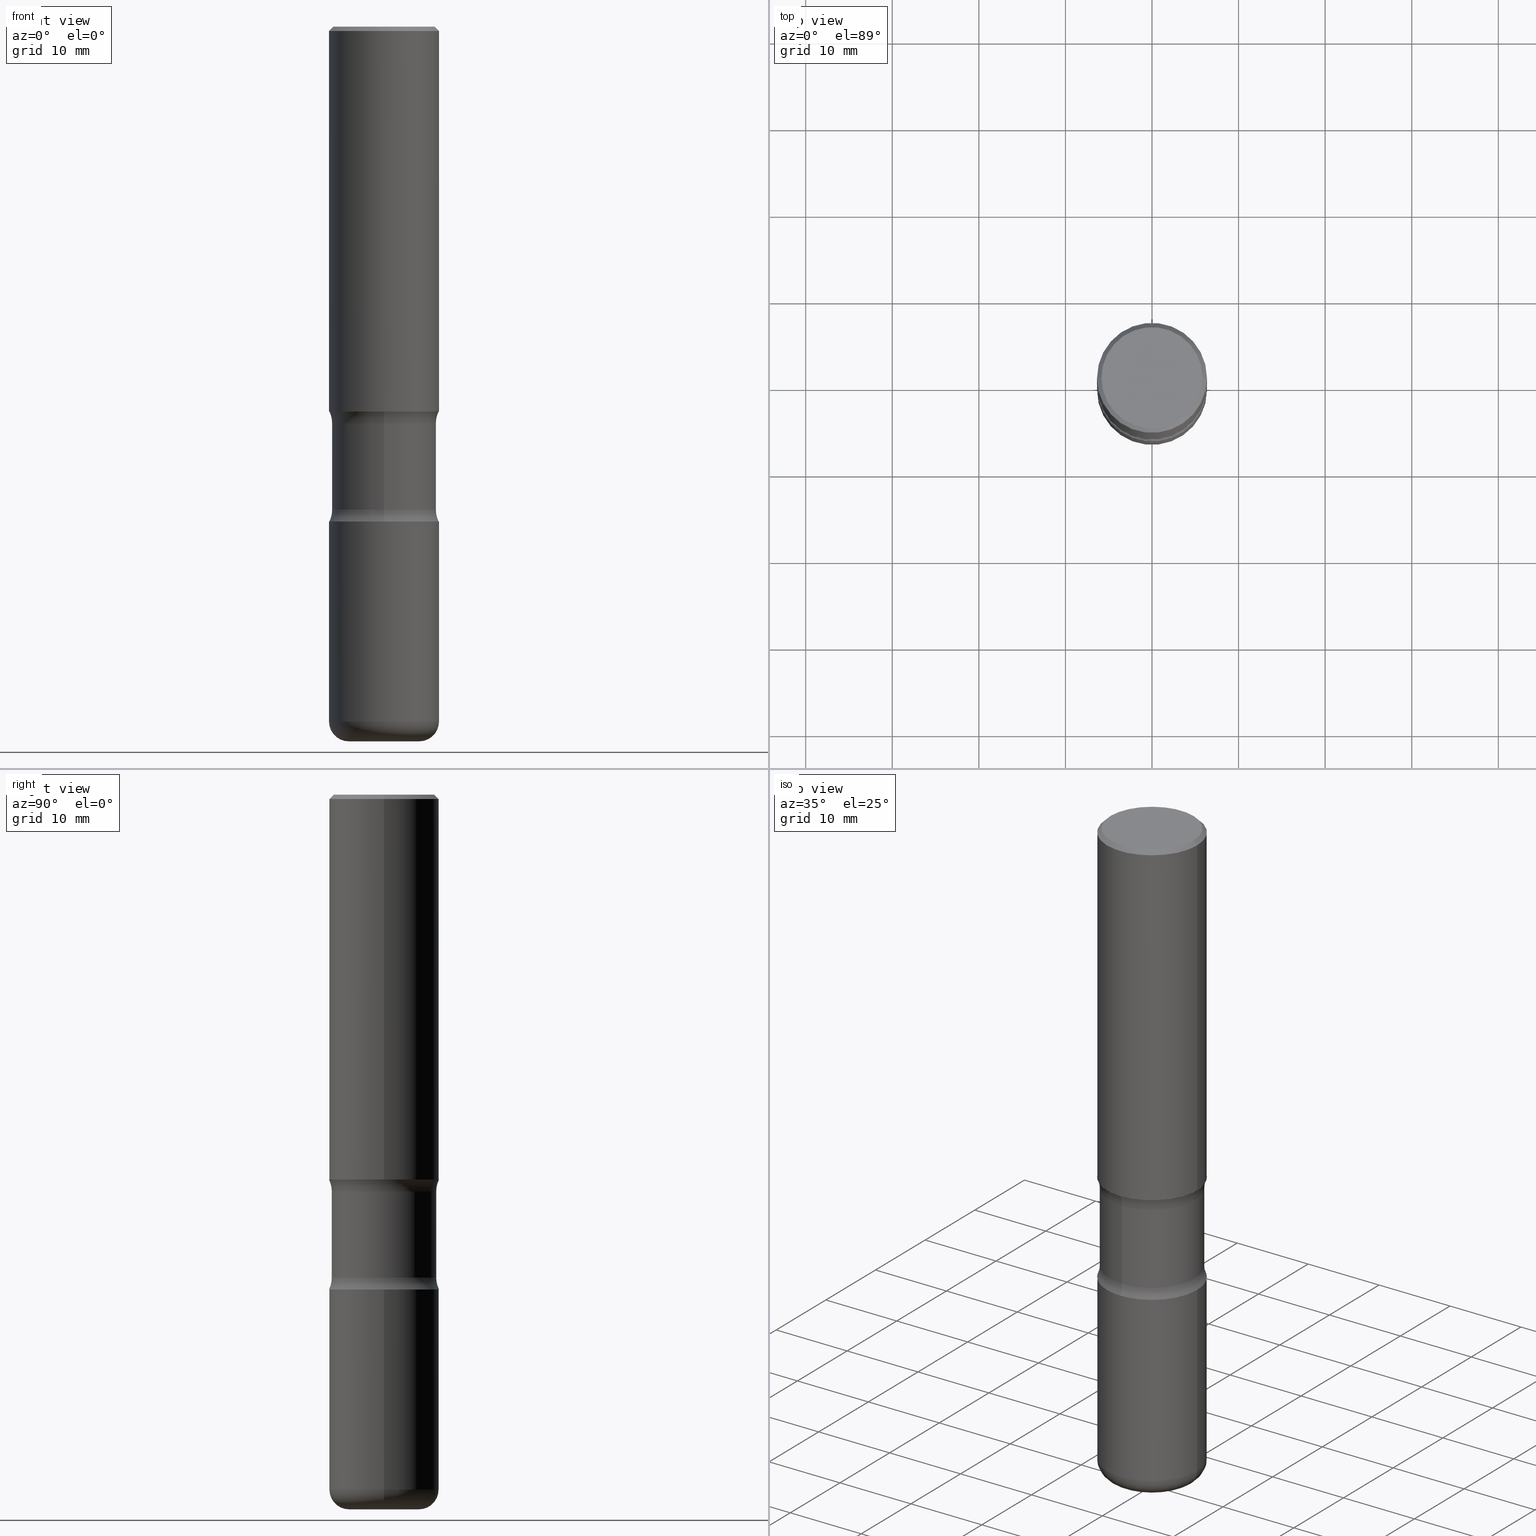
[diagram: canonical four-view strip — front | top / right | iso, engineering-drawing reading convention]
A machine part, canonical four-view strip (front | top / right | iso — engineering-drawing reading convention). The complete STEP part file that produces these views, byte-faithful:
ISO-10303-21;
HEADER;
FILE_DESCRIPTION (( 'STEP AP203' ),
    '1' );
FILE_NAME ('34102.STEP',
    '2024-03-01T23:01:34',
    ( '' ),
    ( '' ),
    'SwSTEP 2.0',
    'SolidWorks 2023',
    '' );
FILE_SCHEMA (( 'CONFIG_CONTROL_DESIGN' ));
ENDSEC;

DATA;
#1 = VECTOR ( 'NONE', #81, 39.37007874015748143 ) ;
#2 = FACE_OUTER_BOUND ( 'NONE', #33, .T. ) ;
#3 = TOROIDAL_SURFACE ( 'NONE', #9, 0.3624999999999997113, 0.1250000000000000278 ) ;
#4 = CARTESIAN_POINT ( 'NONE',  ( 5.369060421469781115E-29, -7.665595333406135543E-15, -2.195513763205741320 ) ) ;
#5 = DIRECTION ( 'NONE',  ( -1.000000000000000000, 6.982962677686265922E-15, -4.876176775795935793E-29 ) ) ;
#6 = DIRECTION ( 'NONE',  ( 1.000000000000000000, -6.982962677686276177E-15, 0.000000000000000000 ) ) ;
#7 = CIRCLE ( 'NONE', #61, 0.1600000000000004474 ) ;
#8 = ORIENTED_EDGE ( 'NONE', *, *, #34, .T. ) ;
#9 = AXIS2_PLACEMENT_3D ( 'NONE', #397, #186, #235 ) ;
#10 = ADVANCED_FACE ( 'NONE', ( #115 ), #510, .F. ) ;
#11 = FACE_OUTER_BOUND ( 'NONE', #447, .T. ) ;
#12 = CYLINDRICAL_SURFACE ( 'NONE', #499, 0.2500000000000005551 ) ;
#13 = DATE_AND_TIME ( #227, #139 ) ;
#14 = ADVANCED_FACE ( 'NONE', ( #551 ), #187, .T. ) ;
#15 = EDGE_CURVE ( 'NONE', #68, #140, #156, .T. ) ;
#16 = DIRECTION ( 'NONE',  ( 1.000000000000000000, -6.982962677686265922E-15, 4.875813741439089685E-29 ) ) ;
#17 = AXIS2_PLACEMENT_3D ( 'NONE', #373, #380, #460 ) ;
#18 = CIRCLE ( 'NONE', #361, 0.2500000000000003886 ) ;
#19 = LOCAL_TIME ( 18, 1, 34.00000000000000000, #66 ) ;
#20 = CARTESIAN_POINT ( 'NONE',  ( -1.715124499442830037E-15, -0.2500000000000082712, -2.250000000000000444 ) ) ;
#21 = APPLICATION_PROTOCOL_DEFINITION ( 'international standard', 'config_control_design', 1994, #240 ) ;
#22 = DIRECTION ( 'NONE',  ( 2.269921404058617848E-29, -3.742875210225950140E-15, -1.000000000000000000 ) ) ;
#23 = DIRECTION ( 'NONE',  ( 1.000000000000000000, -6.982962677686267499E-15, 0.000000000000000000 ) ) ;
#24 = PERSON_AND_ORGANIZATION ( #334, #402 ) ;
#25 = DATE_TIME_ROLE ( 'creation_date' ) ;
#26 = ORIENTED_EDGE ( 'NONE', *, *, #94, .F. ) ;
#27 = AXIS2_PLACEMENT_3D ( 'NONE', #502, #467, #78 ) ;
#28 = MANIFOLD_SOLID_BREP ( 'Body-Move/Copy2[1]', #117 ) ;
#29 = DIRECTION ( 'NONE',  ( 1.000000000000000000, -6.982962677686264344E-15, 0.000000000000000000 ) ) ;
#30 = COORDINATED_UNIVERSAL_TIME_OFFSET ( 5, 0, .BEHIND. ) ;
#31 = ORIENTED_EDGE ( 'NONE', *, *, #515, .F. ) ;
#32 = CARTESIAN_POINT ( 'NONE',  ( -0.1600000000000004474, -9.733585082684073752E-15, -3.249999999999999556 ) ) ;
#33 = EDGE_LOOP ( 'NONE', ( #318, #264, #444, #414 ) ) ;
#34 = EDGE_CURVE ( 'NONE', #497, #168, #223, .T. ) ;
#35 = ORIENTED_EDGE ( 'NONE', *, *, #316, .F. ) ;
#36 = CARTESIAN_POINT ( 'NONE',  ( 0.2500000000000003886, -1.784954126219748555E-15, -0.02000000000000000042 ) ) ;
#37 = DIRECTION ( 'NONE',  ( 1.000000000000000000, -6.982962677686267499E-15, 0.000000000000000000 ) ) ;
#38 = EDGE_LOOP ( 'NONE', ( #412, #419, #321, #302 ) ) ;
#39 = AXIS2_PLACEMENT_3D ( 'NONE', #553, #281, #249 ) ;
#40 = APPROVAL_PERSON_ORGANIZATION ( #195, #165, #487 ) ;
#41 = DIRECTION ( 'NONE',  ( 2.438088387897960049E-29, -3.491481338843145188E-15, -1.000000000000000000 ) ) ;
#42 = EDGE_LOOP ( 'NONE', ( #183, #495, #270, #410 ) ) ;
#43 = DIRECTION ( 'NONE',  ( 0.7071067811865464625, -7.319954787623252890E-15, -0.7071067811865485719 ) ) ;
#44 = DIRECTION ( 'NONE',  ( 1.000000000000000000, -6.982962677686265922E-15, 4.875813741439089685E-29 ) ) ;
#45 = EDGE_CURVE ( 'NONE', #233, #529, #379, .T. ) ;
#46 = AXIS2_PLACEMENT_3D ( 'NONE', #385, #346, #37 ) ;
#47 = CARTESIAN_POINT ( 'NONE',  ( 1.658453635950530153E-15, 0.2374999999999934108, -1.804486236794262233 ) ) ;
#48 = CIRCLE ( 'NONE', #463, 0.1250000000000000278 ) ;
#49 = EDGE_CURVE ( 'NONE', #364, #140, #335, .T. ) ;
#50 = DIRECTION ( 'NONE',  ( -2.445468806185136597E-29, 3.491481338843145583E-15, 1.000000000000000000 ) ) ;
#51 = DIRECTION ( 'NONE',  ( -2.445468806185136597E-29, 3.491481338843145583E-15, 1.000000000000000000 ) ) ;
#52 = DIRECTION ( 'NONE',  ( 2.445468806185136597E-29, -3.491481338843145583E-15, -1.000000000000000000 ) ) ;
#53 = AXIS2_PLACEMENT_3D ( 'NONE', #438, #51, #86 ) ;
#54 = LINE ( 'NONE', #132, #217 ) ;
#55 = MECHANICAL_CONTEXT ( 'NONE', #240, 'mechanical' ) ;
#56 = CARTESIAN_POINT ( 'NONE',  ( 0.2500000000000005551, -1.745740669421570622E-15, 1.219044193948986471E-29 ) ) ;
#57 = LENGTH_MEASURE_WITH_UNIT ( LENGTH_MEASURE( 0.02539999999999999897 ), #238 );
#58 = EDGE_LOOP ( 'NONE', ( #121, #423, #514, #35 ) ) ;
#59 = VERTEX_POINT ( 'NONE', #558 ) ;
#60 = LINE ( 'NONE', #56, #63 ) ;
#61 = AXIS2_PLACEMENT_3D ( 'NONE', #375, #332, #29 ) ;
#62 = VERTEX_POINT ( 'NONE', #456 ) ;
#63 = VECTOR ( 'NONE', #396, 39.37007874015748143 ) ;
#64 = DIRECTION ( 'NONE',  ( -2.445468806185136877E-29, 3.491481338843145188E-15, 1.000000000000000000 ) ) ;
#65 = EDGE_CURVE ( 'NONE', #364, #59, #441, .T. ) ;
#66 = COORDINATED_UNIVERSAL_TIME_OFFSET ( 5, 0, .BEHIND. ) ;
#67 = FACE_OUTER_BOUND ( 'NONE', #38, .T. ) ;
#68 = VERTEX_POINT ( 'NONE', #155 ) ;
#69 = EDGE_LOOP ( 'NONE', ( #164, #184 ) ) ;
#70 = SHAPE_DEFINITION_REPRESENTATION ( #79, #413 ) ;
#71 = DIRECTION ( 'NONE',  ( -2.445468806185136597E-29, 3.491481338843145583E-15, 1.000000000000000000 ) ) ;
#72 = EDGE_LOOP ( 'NONE', ( #192, #244 ) ) ;
#73 = AXIS2_PLACEMENT_3D ( 'NONE', #384, #71, #422 ) ;
#74 = EDGE_CURVE ( 'NONE', #293, #68, #263, .T. ) ;
#75 = VERTEX_POINT ( 'NONE', #152 ) ;
#76 = CARTESIAN_POINT ( 'NONE',  ( 5.502304813916559585E-29, -7.855833012397081604E-15, -2.250000000000001332 ) ) ;
#77 = FACE_OUTER_BOUND ( 'NONE', #365, .T. ) ;
#78 = DIRECTION ( 'NONE',  ( 6.982962677686265922E-15, 1.000000000000000000, -3.742875210225950140E-15 ) ) ;
#79 = PRODUCT_DEFINITION_SHAPE ( 'NONE', 'NONE',  #304 ) ;
#80 = DIRECTION ( 'NONE',  ( 6.982962677686265133E-15, 1.000000000000000000, -3.278217592397110735E-15 ) ) ;
#81 = DIRECTION ( 'NONE',  ( -2.445468806185136877E-29, 3.491481338843145188E-15, 1.000000000000000000 ) ) ;
#82 = ORIENTED_EDGE ( 'NONE', *, *, #339, .T. ) ;
#83 = EDGE_LOOP ( 'NONE', ( #109, #492 ) ) ;
#84 = AXIS2_PLACEMENT_3D ( 'NONE', #4, #348, #178 ) ;
#85 = LINE ( 'NONE', #429, #283 ) ;
#86 = DIRECTION ( 'NONE',  ( 1.000000000000000000, -6.982962677686269077E-15, 4.883557194083113462E-29 ) ) ;
#87 = DIRECTION ( 'NONE',  ( -2.445468806185136597E-29, 3.491481338843145583E-15, 1.000000000000000000 ) ) ;
#88 = APPROVAL ( #453, 'UNSPECIFIED' ) ;
#89 = DIRECTION ( 'NONE',  ( 6.982962677686265133E-15, 1.000000000000000000, -3.278217592397110735E-15 ) ) ;
#90 = AXIS2_PLACEMENT_3D ( 'NONE', #273, #404, #16 ) ;
#91 = FACE_OUTER_BOUND ( 'NONE', #42, .T. ) ;
#92 = CIRCLE ( 'NONE', #232, 0.2500000000000002220 ) ;
#93 = ORIENTED_EDGE ( 'NONE', *, *, #15, .T. ) ;
#94 = EDGE_CURVE ( 'NONE', #120, #140, #337, .T. ) ;
#95 = DIRECTION ( 'NONE',  ( -1.000000000000000000, 6.982962677686265922E-15, -4.876176775795935793E-29 ) ) ;
#96 = DIRECTION ( 'NONE',  ( -2.269921404058617848E-29, 3.742875210225950140E-15, 1.000000000000000000 ) ) ;
#97 = CARTESIAN_POINT ( 'NONE',  ( 4.890937612370273159E-31, -6.982962677686291609E-17, -0.02000000000000000042 ) ) ;
#98 = CIRCLE ( 'NONE', #17, 0.1250000000000000278 ) ;
#99 = DIRECTION ( 'NONE',  ( -2.445468806185136597E-29, 3.491481338843145583E-15, 1.000000000000000000 ) ) ;
#100 = APPROVAL_PERSON_ORGANIZATION ( #276, #88, #266 ) ;
#101 = DIRECTION ( 'NONE',  ( -2.438088387897960049E-29, 3.491481338843145188E-15, 1.000000000000000000 ) ) ;
#102 = FACE_OUTER_BOUND ( 'NONE', #219, .T. ) ;
#103 =( NAMED_UNIT ( * ) PLANE_ANGLE_UNIT ( ) SI_UNIT ( $, .RADIAN. ) );
#104 = ADVANCED_FACE ( 'NONE', ( #466 ), #450, .F. ) ;
#105 = CARTESIAN_POINT ( 'NONE',  ( 4.279570410823991847E-29, -6.110092342975509404E-15, -1.750000000000001332 ) ) ;
#106 = DIRECTION ( 'NONE',  ( -1.000000000000000000, 6.982962677686265922E-15, -4.883557194083112340E-29 ) ) ;
#107 = AXIS2_PLACEMENT_3D ( 'NONE', #241, #417, #254 ) ;
#108 = EDGE_CURVE ( 'NONE', #233, #327, #377, .T. ) ;
#109 = ORIENTED_EDGE ( 'NONE', *, *, #224, .T. ) ;
#110 = CARTESIAN_POINT ( 'NONE',  ( 0.000000000000000000, 0.000000000000000000, 0.000000000000000000 ) ) ;
#111 = VERTEX_POINT ( 'NONE', #32 ) ;
#112 = DIRECTION ( 'NONE',  ( -2.445468806185136597E-29, 3.491481338843145583E-15, 1.000000000000000000 ) ) ;
#113 = CARTESIAN_POINT ( 'NONE',  ( -1.629368274470659150E-15, -0.2375000000000113409, -3.250000000000000000 ) ) ;
#114 = EDGE_CURVE ( 'NONE', #111, #542, #7, .T. ) ;
#115 = FACE_OUTER_BOUND ( 'NONE', #198, .T. ) ;
#116 = EDGE_CURVE ( 'NONE', #68, #461, #98, .T. ) ;
#117 = CLOSED_SHELL ( 'NONE', ( #247, #126, #230, #288, #299, #173 ) ) ;
#118 = DIRECTION ( 'NONE',  ( 2.269921404058617848E-29, -3.742875210225950140E-15, -1.000000000000000000 ) ) ;
#119 = PERSON_AND_ORGANIZATION ( #334, #402 ) ;
#120 = VERTEX_POINT ( 'NONE', #200 ) ;
#121 = ORIENTED_EDGE ( 'NONE', *, *, #15, .F. ) ;
#122 = ORIENTED_EDGE ( 'NONE', *, *, #65, .T. ) ;
#123 = DIRECTION ( 'NONE',  ( -2.445468806185136597E-29, 3.491481338843145583E-15, 1.000000000000000000 ) ) ;
#124 = AXIS2_PLACEMENT_3D ( 'NONE', #509, #501, #287 ) ;
#125 = CC_DESIGN_SECURITY_CLASSIFICATION ( #355, ( #519 ) ) ;
#126 = ADVANCED_FACE ( 'NONE', ( #77 ), #207, .T. ) ;
#127 = CARTESIAN_POINT ( 'NONE',  ( 5.378625338790664161E-29, -7.651897827401345401E-15, -2.195513763205741320 ) ) ;
#128 = CYLINDRICAL_SURFACE ( 'NONE', #325, 0.2500000000000003886 ) ;
#129 = CLOSED_SHELL ( 'NONE', ( #386, #14, #434, #280, #449, #216 ) ) ;
#130 = AXIS2_PLACEMENT_3D ( 'NONE', #271, #181, #539 ) ;
#131 = DIRECTION ( 'NONE',  ( 1.000000000000000000, -6.982962677686267499E-15, 4.876176775795935793E-29 ) ) ;
#132 = CARTESIAN_POINT ( 'NONE',  ( 1.658453635950563680E-15, 0.2374999999999881095, -3.250000000000002220 ) ) ;
#133 = CARTESIAN_POINT ( 'NONE',  ( -0.2300000000000004818, 1.640996229256275675E-15, -1.707404996041300040E-17 ) ) ;
#134 = CYLINDRICAL_SURFACE ( 'NONE', #130, 0.2374999999999997113 ) ;
#135 = DIRECTION ( 'NONE',  ( 0.000000000000000000, 0.000000000000000000, 1.000000000000000000 ) ) ;
#136 = FACE_OUTER_BOUND ( 'NONE', #488, .T. ) ;
#137 = EDGE_CURVE ( 'NONE', #168, #497, #533, .T. ) ;
#138 = AXIS2_PLACEMENT_3D ( 'NONE', #282, #112, #248 ) ;
#139 = LOCAL_TIME ( 18, 1, 34.00000000000000000, #443 ) ;
#140 = VERTEX_POINT ( 'NONE', #556 ) ;
#141 = CARTESIAN_POINT ( 'NONE',  ( 0.000000000000000000, 0.000000000000000000, 0.000000000000000000 ) ) ;
#142 = CARTESIAN_POINT ( 'NONE',  ( -0.1600000000000004474, -9.896212653528176699E-15, -3.160000000000000142 ) ) ;
#143 = EDGE_CURVE ( 'NONE', #75, #62, #517, .T. ) ;
#144 = ORIENTED_EDGE ( 'NONE', *, *, #526, .F. ) ;
#145 = DIMENSIONAL_EXPONENTS ( 1.000000000000000000, 0.000000000000000000, 0.000000000000000000, 0.000000000000000000, 0.000000000000000000, 0.000000000000000000, 0.000000000000000000 ) ;
#146 = DIRECTION ( 'NONE',  ( 1.000000000000000000, -6.982962677686266711E-15, 4.876176775795935232E-29 ) ) ;
#147 = PERSON_AND_ORGANIZATION_ROLE ( 'design_owner' ) ;
#148 =( NAMED_UNIT ( * ) SI_UNIT ( $, .STERADIAN. ) SOLID_ANGLE_UNIT ( ) );
#149 = AXIS2_PLACEMENT_3D ( 'NONE', #516, #123, #352 ) ;
#150 = CIRCLE ( 'NONE', #395, 0.08999999999999962197 ) ;
#151 = ORIENTED_EDGE ( 'NONE', *, *, #49, .T. ) ;
#152 = CARTESIAN_POINT ( 'NONE',  ( 0.2500000000000006661, -7.855833012397080026E-15, -1.750000000000001332 ) ) ;
#153 = DIRECTION ( 'NONE',  ( 2.445468806185136597E-29, -3.491481338843145583E-15, -1.000000000000000000 ) ) ;
#154 = EDGE_LOOP ( 'NONE', ( #272, #383, #465, #338 ) ) ;
#155 = CARTESIAN_POINT ( 'NONE',  ( -1.672246386956765893E-15, -0.2375000000000057621, -1.804486236794260678 ) ) ;
#156 = LINE ( 'NONE', #113, #296 ) ;
#157 = ORIENTED_EDGE ( 'NONE', *, *, #260, .F. ) ;
#158 = DIRECTION ( 'NONE',  ( 2.269921404058617848E-29, -3.742875210225950140E-15, -1.000000000000000000 ) ) ;
#159 = AXIS2_PLACEMENT_3D ( 'NONE', #170, #261, #6 ) ;
#160 = APPLICATION_CONTEXT ( 'configuration controlled 3d designs of mechanical parts and assemblies' ) ;
#161 = ORIENTED_EDGE ( 'NONE', *, *, #65, .F. ) ;
#162 = LOCAL_TIME ( 18, 1, 34.00000000000000000, #30 ) ;
#163 = DATE_AND_TIME ( #289, #534 ) ;
#164 = ORIENTED_EDGE ( 'NONE', *, *, #312, .F. ) ;
#165 = APPROVAL ( #310, 'UNSPECIFIED' ) ;
#166 = DIRECTION ( 'NONE',  ( 2.269921404058617848E-29, -3.742875210225950140E-15, -1.000000000000000000 ) ) ;
#167 = PERSON_AND_ORGANIZATION ( #334, #402 ) ;
#168 = VERTEX_POINT ( 'NONE', #36 ) ;
#169 = EDGE_CURVE ( 'NONE', #68, #293, #215, .T. ) ;
#170 = CARTESIAN_POINT ( 'NONE',  ( 0.1600000000000004474, -1.215035505917414604E-14, -3.160000000000000142 ) ) ;
#171 = TOROIDAL_SURFACE ( 'NONE', #401, 0.3624999999999997113, 0.1250000000000000278 ) ;
#172 = DIRECTION ( 'NONE',  ( 1.000000000000000000, -6.982962677686267499E-15, 4.876176775795935793E-29 ) ) ;
#173 = ADVANCED_FACE ( 'NONE', ( #513 ), #464, .F. ) ;
#174 = CYLINDRICAL_SURFACE ( 'NONE', #176, 0.2500000000000003886 ) ;
#175 = CARTESIAN_POINT ( 'NONE',  ( 0.000000000000000000, 0.000000000000000000, 0.000000000000000000 ) ) ;
#176 = AXIS2_PLACEMENT_3D ( 'NONE', #175, #50, #131 ) ;
#177 = AXIS2_PLACEMENT_3D ( 'NONE', #97, #52, #262 ) ;
#178 = DIRECTION ( 'NONE',  ( 6.982962677686265922E-15, 1.000000000000000000, -3.742875210225950140E-15 ) ) ;
#179 = DIRECTION ( 'NONE',  ( 6.982962677686265922E-15, 1.000000000000000000, -4.601007147224027577E-15 ) ) ;
#180 = EDGE_LOOP ( 'NONE', ( #411, #440, #374, #505 ) ) ;
#181 = DIRECTION ( 'NONE',  ( 2.269921404058617848E-29, -3.742875210225950140E-15, -1.000000000000000000 ) ) ;
#182 = APPROVAL_DATE_TIME ( #13, #165 ) ;
#183 = ORIENTED_EDGE ( 'NONE', *, *, #116, .F. ) ;
#184 = ORIENTED_EDGE ( 'NONE', *, *, #114, .F. ) ;
#185 = CC_DESIGN_PERSON_AND_ORGANIZATION_ASSIGNMENT ( #317, #557, ( #519 ) ) ;
#186 = DIRECTION ( 'NONE',  ( 2.269921404058617848E-29, -3.742875210225950140E-15, -1.000000000000000000 ) ) ;
#187 = CONICAL_SURFACE ( 'NONE', #507, 0.2500000000000003886, 0.7853981633974468357 ) ;
#188 = CALENDAR_DATE ( 2024, 1, 3 ) ;
#189 = CC_DESIGN_APPROVAL ( #511, ( #355 ) ) ;
#190 = FACE_OUTER_BOUND ( 'NONE', #391, .T. ) ;
#191 = DATE_AND_TIME ( #188, #19 ) ;
#192 = ORIENTED_EDGE ( 'NONE', *, *, #369, .T. ) ;
#193 = DIRECTION ( 'NONE',  ( 6.982962677686265133E-15, 1.000000000000000000, -3.278217592397113101E-15 ) ) ;
#194 = CYLINDRICAL_SURFACE ( 'NONE', #107, 0.2500000000000005551 ) ;
#195 = PERSON_AND_ORGANIZATION ( #334, #402 ) ;
#196 = CIRCLE ( 'NONE', #489, 0.2374999999999998224 ) ;
#197 = EDGE_LOOP ( 'NONE', ( #31, #82, #550, #399 ) ) ;
#198 = EDGE_LOOP ( 'NONE', ( #538, #406 ) ) ;
#199 = EDGE_LOOP ( 'NONE', ( #376, #206, #354, #8 ) ) ;
#200 = CARTESIAN_POINT ( 'NONE',  ( 1.658453635950540606E-15, 0.2374999999999921618, -2.195513763205742208 ) ) ;
#201 = CARTESIAN_POINT ( 'NONE',  ( 4.890937612370273159E-31, -6.982962677686291609E-17, -0.02000000000000000042 ) ) ;
#202 = ORIENTED_EDGE ( 'NONE', *, *, #45, .F. ) ;
#203 = MANIFOLD_SOLID_BREP ( 'Body-Move/Copy2[4]', #394 ) ;
#204 = EDGE_CURVE ( 'NONE', #461, #341, #274, .T. ) ;
#205 = CARTESIAN_POINT ( 'NONE',  ( 7.727681427545032274E-29, -1.103308103074433958E-14, -3.160000000000000142 ) ) ;
#206 = ORIENTED_EDGE ( 'NONE', *, *, #369, .F. ) ;
#207 = TOROIDAL_SURFACE ( 'NONE', #416, 0.1600000000000004474, 0.08999999999999963585 ) ;
#208 = VECTOR ( 'NONE', #400, 39.37007874015748143 ) ;
#209 = DIRECTION ( 'NONE',  ( -1.000000000000000000, 6.982962677686265922E-15, -4.876176775795935793E-29 ) ) ;
#210 = ORIENTED_EDGE ( 'NONE', *, *, #108, .T. ) ;
#211 = DIRECTION ( 'NONE',  ( 2.438088387897960049E-29, -3.491481338843145188E-15, -1.000000000000000000 ) ) ;
#212 = MANIFOLD_SOLID_BREP ( 'Body-Move/Copy2[2]', #129 ) ;
#213 = DIRECTION ( 'NONE',  ( 6.982962677686265922E-15, 1.000000000000000000, -3.742875210225950140E-15 ) ) ;
#214 = CARTESIAN_POINT ( 'NONE',  ( 4.175405657340879278E-46, -5.961372681521788801E-32, -1.707404996040164512E-17 ) ) ;
#215 = CIRCLE ( 'NONE', #474, 0.2374999999999995726 ) ;
#216 = ADVANCED_FACE ( 'NONE', ( #67 ), #194, .T. ) ;
#217 = VECTOR ( 'NONE', #446, 39.37007874015748143 ) ;
#218 = CARTESIAN_POINT ( 'NONE',  ( 0.000000000000000000, 0.000000000000000000, 0.000000000000000000 ) ) ;
#219 = EDGE_LOOP ( 'NONE', ( #360, #122 ) ) ;
#220 = PLANE ( 'NONE',  #498 ) ;
#221 = FACE_OUTER_BOUND ( 'NONE', #428, .T. ) ;
#222 = PRODUCT_RELATED_PRODUCT_CATEGORY ( 'detail', '', ( #291 ) ) ;
#223 = CIRCLE ( 'NONE', #39, 0.2500000000000003886 ) ;
#224 = EDGE_CURVE ( 'NONE', #327, #239, #18, .T. ) ;
#225 = CC_DESIGN_APPROVAL ( #165, ( #519 ) ) ;
#226 = DIRECTION ( 'NONE',  ( -2.445468806185136597E-29, 3.491481338843145583E-15, 1.000000000000000000 ) ) ;
#227 = CALENDAR_DATE ( 2024, 1, 3 ) ;
#228 = CARTESIAN_POINT ( 'NONE',  ( -1.715124499442841278E-15, -0.2500000000000062172, -1.750000000000000444 ) ) ;
#229 = ADVANCED_FACE ( 'NONE', ( #351 ), #171, .F. ) ;
#230 = ADVANCED_FACE ( 'NONE', ( #522 ), #255, .T. ) ;
#231 = CIRCLE ( 'NONE', #159, 0.08999999999999962197 ) ;
#232 = AXIS2_PLACEMENT_3D ( 'NONE', #319, #493, #193 ) ;
#233 = VERTEX_POINT ( 'NONE', #477 ) ;
#234 = EDGE_LOOP ( 'NONE', ( #330, #472, #537, #144 ) ) ;
#235 = DIRECTION ( 'NONE',  ( 6.982962677686265922E-15, 1.000000000000000000, -3.742875210225950140E-15 ) ) ;
#236 = DIRECTION ( 'NONE',  ( 1.000000000000000000, 0.000000000000000000, 0.000000000000000000 ) ) ;
#237 = CARTESIAN_POINT ( 'NONE',  ( 3.785429481638292293E-29, -1.031449620669491633E-14, -2.250000000000000888 ) ) ;
#238 =( LENGTH_UNIT ( ) NAMED_UNIT ( * ) SI_UNIT ( $, .METRE. ) );
#239 = VERTEX_POINT ( 'NONE', #258 ) ;
#240 = APPLICATION_CONTEXT ( 'configuration controlled 3d designs of mechanical parts and assemblies' ) ;
#241 = CARTESIAN_POINT ( 'NONE',  ( 0.000000000000000000, 0.000000000000000000, 0.000000000000000000 ) ) ;
#242 = ORIENTED_EDGE ( 'NONE', *, *, #469, .F. ) ;
#243 = CARTESIAN_POINT ( 'NONE',  ( 5.369060421469781115E-29, -7.665595333406135543E-15, -2.195513763205741320 ) ) ;
#244 = ORIENTED_EDGE ( 'NONE', *, *, #515, .T. ) ;
#245 = VERTEX_POINT ( 'NONE', #353 ) ;
#246 = CC_DESIGN_DATE_AND_TIME_ASSIGNMENT ( #163, #418, ( #355 ) ) ;
#247 = ADVANCED_FACE ( 'NONE', ( #253 ), #174, .T. ) ;
#248 = DIRECTION ( 'NONE',  ( 1.000000000000000000, -6.982962677686267499E-15, 0.000000000000000000 ) ) ;
#249 = DIRECTION ( 'NONE',  ( 1.000000000000000000, -6.982962677686267499E-15, 0.000000000000000000 ) ) ;
#250 = DIRECTION ( 'NONE',  ( 2.269921404058617848E-29, -3.742875210225950140E-15, -1.000000000000000000 ) ) ;
#251 = CARTESIAN_POINT ( 'NONE',  ( -2.486930524192125050E-15, -0.3625000000000075384, -2.195513763205739988 ) ) ;
#252 = CIRCLE ( 'NONE', #389, 0.2500000000000006661 ) ;
#253 = FACE_OUTER_BOUND ( 'NONE', #154, .T. ) ;
#254 = DIRECTION ( 'NONE',  ( 1.000000000000000000, -6.982962677686266711E-15, 4.876176775795935232E-29 ) ) ;
#255 = PLANE ( 'NONE',  #424 ) ;
#256 = AXIS2_PLACEMENT_3D ( 'NONE', #76, #22, #89 ) ;
#257 = AXIS2_PLACEMENT_3D ( 'NONE', #525, #490, #179 ) ;
#258 = CARTESIAN_POINT ( 'NONE',  ( -0.2500000000000003886, -7.668100182170457762E-15, -2.250000000000001332 ) ) ;
#259 = CARTESIAN_POINT ( 'NONE',  ( 2.531323970661313492E-15, 0.3624999999999934941, -1.804486236794262233 ) ) ;
#260 = EDGE_CURVE ( 'NONE', #542, #233, #231, .T. ) ;
#261 = DIRECTION ( 'NONE',  ( -6.982962677686266711E-15, -1.000000000000000000, 3.491481338843145583E-15 ) ) ;
#262 = DIRECTION ( 'NONE',  ( -1.000000000000000000, 6.982962677686267499E-15, 0.000000000000000000 ) ) ;
#263 = CIRCLE ( 'NONE', #349, 0.2374999999999995726 ) ;
#264 = ORIENTED_EDGE ( 'NONE', *, *, #114, .T. ) ;
#265 = LINE ( 'NONE', #530, #275 ) ;
#266 = APPROVAL_ROLE ( '' ) ;
#267 = PLANE ( 'NONE',  #508 ) ;
#268 = DIRECTION ( 'NONE',  ( -6.982962677686265133E-15, -1.000000000000000000, 0.000000000000000000 ) ) ;
#269 = CARTESIAN_POINT ( 'NONE',  ( 5.502304813916559585E-29, -7.855833012397081604E-15, -2.250000000000001332 ) ) ;
#270 = ORIENTED_EDGE ( 'NONE', *, *, #526, .T. ) ;
#271 = CARTESIAN_POINT ( 'NONE',  ( 7.772226217975179114E-29, -1.159870822262303332E-14, -3.250000000000001332 ) ) ;
#272 = ORIENTED_EDGE ( 'NONE', *, *, #45, .T. ) ;
#273 = CARTESIAN_POINT ( 'NONE',  ( 4.175405657340879278E-46, -5.961372681521788801E-32, -1.707404996040164512E-17 ) ) ;
#274 = CIRCLE ( 'NONE', #480, 0.2500000000000002220 ) ;
#275 = VECTOR ( 'NONE', #527, 39.37007874015748143 ) ;
#276 = PERSON_AND_ORGANIZATION ( #334, #402 ) ;
#277 = DIRECTION ( 'NONE',  ( -2.445468806185136597E-29, 3.491481338843145583E-15, 1.000000000000000000 ) ) ;
#278 = DATE_AND_TIME ( #491, #372 ) ;
#279 = DIRECTION ( 'NONE',  ( 6.860497997771530774E-15, 1.000000000000000000, 0.000000000000000000 ) ) ;
#280 = ADVANCED_FACE ( 'NONE', ( #433 ), #220, .F. ) ;
#281 = DIRECTION ( 'NONE',  ( -2.445468806185136597E-29, 3.491481338843145583E-15, 1.000000000000000000 ) ) ;
#282 = CARTESIAN_POINT ( 'NONE',  ( 4.890937612370273159E-31, -6.982962677686291609E-17, -0.02000000000000000042 ) ) ;
#283 = VECTOR ( 'NONE', #43, 39.37007874015748143 ) ;
#284 = DIRECTION ( 'NONE',  ( 2.269921404058617848E-29, -3.742875210225950140E-15, -1.000000000000000000 ) ) ;
#285 = AXIS2_PLACEMENT_3D ( 'NONE', #536, #96, #322 ) ;
#286 = CC_DESIGN_PERSON_AND_ORGANIZATION_ASSIGNMENT ( #359, #531, ( #519 ) ) ;
#287 = DIRECTION ( 'NONE',  ( 6.982962677686265133E-15, 1.000000000000000000, -3.450755360418019105E-15 ) ) ;
#288 = ADVANCED_FACE ( 'NONE', ( #2 ), #303, .T. ) ;
#289 = CALENDAR_DATE ( 2024, 1, 3 ) ;
#290 = ORIENTED_EDGE ( 'NONE', *, *, #552, .F. ) ;
#291 = PRODUCT ( '34102', '34102', '', ( #55 ) ) ;
#292 = PERSON_AND_ORGANIZATION_ROLE ( 'classification_officer' ) ;
#293 = VERTEX_POINT ( 'NONE', #47 ) ;
#294 = DIRECTION ( 'NONE',  ( -1.000000000000000000, 6.982962677686265922E-15, -4.883557194083112340E-29 ) ) ;
#295 = APPROVAL_STATUS ( 'not_yet_approved' ) ;
#296 = VECTOR ( 'NONE', #284, 39.37007874015748143 ) ;
#297 = CONICAL_SURFACE ( 'NONE', #177, 0.2500000000000003886, 0.7853981633974468357 ) ;
#298 = DIRECTION ( 'NONE',  ( 1.000000000000000000, -6.982962677686263555E-15, 0.000000000000000000 ) ) ;
#299 = ADVANCED_FACE ( 'NONE', ( #221 ), #128, .T. ) ;
#300 = DIRECTION ( 'NONE',  ( 2.438088387897960049E-29, -3.491481338843145188E-15, -1.000000000000000000 ) ) ;
#301 = DIRECTION ( 'NONE',  ( 6.982962677686265133E-15, 1.000000000000000000, -3.450755360418019105E-15 ) ) ;
#302 = ORIENTED_EDGE ( 'NONE', *, *, #34, .F. ) ;
#303 = TOROIDAL_SURFACE ( 'NONE', #53, 0.1600000000000004474, 0.08999999999999963585 ) ;
#304 = PRODUCT_DEFINITION ( 'UNKNOWN', '', #519, #436 ) ;
#305 = CIRCLE ( 'NONE', #362, 0.2500000000000003886 ) ;
#306 = CARTESIAN_POINT ( 'NONE',  ( 5.502304813916559585E-29, -7.855833012397081604E-15, -2.250000000000001332 ) ) ;
#307 = ADVANCED_FACE ( 'NONE', ( #393 ), #313, .F. ) ;
#308 = CARTESIAN_POINT ( 'NONE',  ( -0.2500000000000003886, 1.675911042644706732E-15, -0.02000000000000000042 ) ) ;
#309 = DIRECTION ( 'NONE',  ( 1.000000000000000000, -6.982962677686267499E-15, 0.000000000000000000 ) ) ;
#310 = APPROVAL_STATUS ( 'not_yet_approved' ) ;
#311 = ORIENTED_EDGE ( 'NONE', *, *, #445, .T. ) ;
#312 = EDGE_CURVE ( 'NONE', #542, #111, #371, .T. ) ;
#313 = TOROIDAL_SURFACE ( 'NONE', #84, 0.3624999999999998779, 0.1250000000000000555 ) ;
#314 = AXIS2_PLACEMENT_3D ( 'NONE', #110, #135, #236 ) ;
#315 = FACE_OUTER_BOUND ( 'NONE', #199, .T. ) ;
#316 = EDGE_CURVE ( 'NONE', #140, #120, #196, .T. ) ;
#317 = PERSON_AND_ORGANIZATION ( #334, #402 ) ;
#318 = ORIENTED_EDGE ( 'NONE', *, *, #535, .F. ) ;
#319 = CARTESIAN_POINT ( 'NONE',  ( 4.367344111887250941E-29, -5.984395407284106534E-15, -1.750000000000001332 ) ) ;
#320 = CARTESIAN_POINT ( 'NONE',  ( 0.1600000000000004474, -1.246458837967002773E-14, -3.249999999999999556 ) ) ;
#321 = ORIENTED_EDGE ( 'NONE', *, *, #473, .T. ) ;
#322 = DIRECTION ( 'NONE',  ( -6.982962677686265922E-15, -1.000000000000000000, 3.742875210225950140E-15 ) ) ;
#323 = APPLICATION_PROTOCOL_DEFINITION ( 'international standard', 'config_control_design', 1994, #160 ) ;
#324 = CC_DESIGN_DATE_AND_TIME_ASSIGNMENT ( #278, #25, ( #304 ) ) ;
#325 = AXIS2_PLACEMENT_3D ( 'NONE', #218, #520, #172 ) ;
#326 = COORDINATED_UNIVERSAL_TIME_OFFSET ( 5, 0, .BEHIND. ) ;
#327 = VERTEX_POINT ( 'NONE', #521 ) ;
#328 = EDGE_CURVE ( 'NONE', #59, #120, #388, .T. ) ;
#329 = CARTESIAN_POINT ( 'NONE',  ( 4.491023587013149728E-29, -6.188330592279845103E-15, -1.804486236794261567 ) ) ;
#330 = ORIENTED_EDGE ( 'NONE', *, *, #169, .F. ) ;
#331 = ORIENTED_EDGE ( 'NONE', *, *, #143, .T. ) ;
#332 = DIRECTION ( 'NONE',  ( -2.445468806185136597E-29, 3.491481338843145583E-15, 1.000000000000000000 ) ) ;
#333 = ORIENTED_EDGE ( 'NONE', *, *, #137, .F. ) ;
#334 = PERSON ( 'UNSPECIFIED', 'UNSPECIFIED', 'UNSPECIFIED', ('UNSPECIFIED'), ('UNSPECIFIED'), ('UNSPECIFIED') ) ;
#335 = CIRCLE ( 'NONE', #546, 0.1250000000000000555 ) ;
#336 = DIRECTION ( 'NONE',  ( 6.982962677686266711E-15, 1.000000000000000000, -3.450755360418023049E-15 ) ) ;
#337 = CIRCLE ( 'NONE', #124, 0.2374999999999998224 ) ;
#338 = ORIENTED_EDGE ( 'NONE', *, *, #108, .F. ) ;
#339 = EDGE_CURVE ( 'NONE', #245, #168, #85, .T. ) ;
#340 = CIRCLE ( 'NONE', #481, 0.2500000000000003886 ) ;
#341 = VERTEX_POINT ( 'NONE', #518 ) ;
#342 = DIRECTION ( 'NONE',  ( 6.982962677686266711E-15, 1.000000000000000000, -3.450755360418023049E-15 ) ) ;
#343 = ORIENTED_EDGE ( 'NONE', *, *, #74, .T. ) ;
#344 = CARTESIAN_POINT ( 'NONE',  ( -0.2500000000000003886, 1.675911042644706732E-15, -0.02000000000000000042 ) ) ;
#345 = CARTESIAN_POINT ( 'NONE',  ( 4.491023587013149728E-29, -6.188330592279845103E-15, -1.804486236794261567 ) ) ;
#346 = DIRECTION ( 'NONE',  ( -2.445468806185136597E-29, 3.491481338843145583E-15, 1.000000000000000000 ) ) ;
#347 = CC_DESIGN_PERSON_AND_ORGANIZATION_ASSIGNMENT ( #368, #543, ( #304 ) ) ;
#348 = DIRECTION ( 'NONE',  ( 2.269921404058617848E-29, -3.742875210225950140E-15, -1.000000000000000000 ) ) ;
#349 = AXIS2_PLACEMENT_3D ( 'NONE', #329, #118, #336 ) ;
#350 = ADVANCED_FACE ( 'NONE', ( #91 ), #3, .F. ) ;
#351 = FACE_OUTER_BOUND ( 'NONE', #234, .T. ) ;
#352 = DIRECTION ( 'NONE',  ( 1.000000000000000000, -6.982962677686264344E-15, 0.000000000000000000 ) ) ;
#353 = CARTESIAN_POINT ( 'NONE',  ( 0.2300000000000004818, -1.681434332853602167E-15, -1.707404996039015117E-17 ) ) ;
#354 = ORIENTED_EDGE ( 'NONE', *, *, #478, .T. ) ;
#355 = SECURITY_CLASSIFICATION ( '', '', #470 ) ;
#356 = CARTESIAN_POINT ( 'NONE',  ( 4.279570410823991847E-29, -6.110092342975509404E-15, -1.750000000000001332 ) ) ;
#357 = LINE ( 'NONE', #308, #208 ) ;
#358 = CARTESIAN_POINT ( 'NONE',  ( -0.2500000000000003886, 1.776356839400253226E-15, -1.229733772563728407E-29 ) ) ;
#359 = PERSON_AND_ORGANIZATION ( #334, #402 ) ;
#360 = ORIENTED_EDGE ( 'NONE', *, *, #486, .T. ) ;
#361 = AXIS2_PLACEMENT_3D ( 'NONE', #306, #87, #298 ) ;
#362 = AXIS2_PLACEMENT_3D ( 'NONE', #366, #99, #500 ) ;
#363 = APPROVAL_DATE_TIME ( #191, #88 ) ;
#364 = VERTEX_POINT ( 'NONE', #20 ) ;
#365 = EDGE_LOOP ( 'NONE', ( #454, #421, #202, #157 ) ) ;
#366 = CARTESIAN_POINT ( 'NONE',  ( 5.502304813916559585E-29, -7.855833012397081604E-15, -2.250000000000001332 ) ) ;
#367 = ADVANCED_FACE ( 'NONE', ( #102 ), #483, .F. ) ;
#368 = PERSON_AND_ORGANIZATION ( #334, #402 ) ;
#369 = EDGE_CURVE ( 'NONE', #503, #245, #547, .T. ) ;
#370 = ORIENTED_EDGE ( 'NONE', *, *, #328, .F. ) ;
#371 = CIRCLE ( 'NONE', #149, 0.1600000000000004474 ) ;
#372 = LOCAL_TIME ( 18, 1, 34.00000000000000000, #326 ) ;
#373 = CARTESIAN_POINT ( 'NONE',  ( -2.486930524192133333E-15, -0.3625000000000058731, -1.804486236794259568 ) ) ;
#374 = ORIENTED_EDGE ( 'NONE', *, *, #328, .T. ) ;
#375 = CARTESIAN_POINT ( 'NONE',  ( 7.947773620101692818E-29, -1.134731435124022127E-14, -3.249999999999999556 ) ) ;
#376 = ORIENTED_EDGE ( 'NONE', *, *, #339, .F. ) ;
#377 = LINE ( 'NONE', #420, #1 ) ;
#378 = DIRECTION ( 'NONE',  ( -1.000000000000000000, 6.982962677686267499E-15, 0.000000000000000000 ) ) ;
#379 = CIRCLE ( 'NONE', #46, 0.2500000000000003886 ) ;
#380 = DIRECTION ( 'NONE',  ( 1.000000000000000000, -6.860497997771530774E-15, 4.837720192625000670E-29 ) ) ;
#381 = AXIS2_PLACEMENT_3D ( 'NONE', #269, #158, #80 ) ;
#382 = EDGE_LOOP ( 'NONE', ( #161, #151, #545, #370 ) ) ;
#383 = ORIENTED_EDGE ( 'NONE', *, *, #409, .T. ) ;
#384 = CARTESIAN_POINT ( 'NONE',  ( 4.279570410823991847E-29, -6.110092342975509404E-15, -1.750000000000001332 ) ) ;
#385 = CARTESIAN_POINT ( 'NONE',  ( 7.727681427545032274E-29, -1.103308103074433958E-14, -3.160000000000000142 ) ) ;
#386 = ADVANCED_FACE ( 'NONE', ( #190 ), #12, .T. ) ;
#387 = DIRECTION ( 'NONE',  ( 2.269921404058617848E-29, -3.742875210225950140E-15, -1.000000000000000000 ) ) ;
#388 = CIRCLE ( 'NONE', #462, 0.1250000000000000555 ) ;
#389 = AXIS2_PLACEMENT_3D ( 'NONE', #105, #226, #23 ) ;
#390 = CARTESIAN_POINT ( 'NONE',  ( 1.606081415867844617E-15, 0.2300000000000004818, -8.115777329141259230E-16 ) ) ;
#391 = EDGE_LOOP ( 'NONE', ( #331, #311, #333, #532 ) ) ;
#392 = ADVANCED_FACE ( 'NONE', ( #452 ), #134, .T. ) ;
#393 = FACE_OUTER_BOUND ( 'NONE', #382, .T. ) ;
#394 = CLOSED_SHELL ( 'NONE', ( #458, #307, #229, #350, #10, #367, #104, #392 ) ) ;
#395 = AXIS2_PLACEMENT_3D ( 'NONE', #142, #528, #540 ) ;
#396 = DIRECTION ( 'NONE',  ( -2.445468806185136877E-29, 3.491481338843145188E-15, 1.000000000000000000 ) ) ;
#397 = CARTESIAN_POINT ( 'NONE',  ( 4.460505784722945109E-29, -6.232033822124849427E-15, -1.804486236794260900 ) ) ;
#398 = CARTESIAN_POINT ( 'NONE',  ( -0.2500000000000002220, -9.256724191344087541E-15, -3.160000000000000142 ) ) ;
#399 = ORIENTED_EDGE ( 'NONE', *, *, #478, .F. ) ;
#400 = DIRECTION ( 'NONE',  ( -0.7071067811865464625, 2.468850131082245622E-15, -0.7071067811865485719 ) ) ;
#401 = AXIS2_PLACEMENT_3D ( 'NONE', #482, #431, #213 ) ;
#402 = ORGANIZATION ( 'UNSPECIFIED', 'UNSPECIFIED', '' ) ;
#403 = CIRCLE ( 'NONE', #381, 0.2500000000000003886 ) ;
#404 = DIRECTION ( 'NONE',  ( -2.445468806185136597E-29, 3.491481338843145583E-15, 1.000000000000000000 ) ) ;
#405 = EDGE_CURVE ( 'NONE', #529, #233, #340, .T. ) ;
#406 = ORIENTED_EDGE ( 'NONE', *, *, #204, .F. ) ;
#407 = APPROVAL_DATE_TIME ( #457, #511 ) ;
#408 = DIRECTION ( 'NONE',  ( -2.445468806185136597E-29, 3.491481338843145583E-15, 1.000000000000000000 ) ) ;
#409 = EDGE_CURVE ( 'NONE', #529, #239, #496, .T. ) ;
#410 = ORIENTED_EDGE ( 'NONE', *, *, #484, .T. ) ;
#411 = ORIENTED_EDGE ( 'NONE', *, *, #49, .F. ) ;
#412 = ORIENTED_EDGE ( 'NONE', *, *, #445, .F. ) ;
#413 = ADVANCED_BREP_SHAPE_REPRESENTATION ( '34102', ( #28, #212, #203, #314 ), #476 ) ;
#414 = ORIENTED_EDGE ( 'NONE', *, *, #405, .F. ) ;
#415 = CALENDAR_DATE ( 2024, 1, 3 ) ;
#416 = AXIS2_PLACEMENT_3D ( 'NONE', #205, #277, #504 ) ;
#417 = DIRECTION ( 'NONE',  ( -2.445468806185136597E-29, 3.491481338843145583E-15, 1.000000000000000000 ) ) ;
#418 = DATE_TIME_ROLE ( 'classification_date' ) ;
#419 = ORIENTED_EDGE ( 'NONE', *, *, #430, .T. ) ;
#420 = CARTESIAN_POINT ( 'NONE',  ( 0.2500000000000003886, -1.745740669421569636E-15, 1.219044193948985910E-29 ) ) ;
#421 = ORIENTED_EDGE ( 'NONE', *, *, #535, .T. ) ;
#422 = DIRECTION ( 'NONE',  ( 1.000000000000000000, -6.982962677686267499E-15, 0.000000000000000000 ) ) ;
#423 = ORIENTED_EDGE ( 'NONE', *, *, #169, .T. ) ;
#424 = AXIS2_PLACEMENT_3D ( 'NONE', #437, #300, #5 ) ;
#425 = DIRECTION ( 'NONE',  ( 2.269921404058617848E-29, -3.742875210225950140E-15, -1.000000000000000000 ) ) ;
#426 = COORDINATED_UNIVERSAL_TIME_OFFSET ( 5, 0, .BEHIND. ) ;
#427 = VECTOR ( 'NONE', #64, 39.37007874015748143 ) ;
#428 = EDGE_LOOP ( 'NONE', ( #471, #468, #210, #290 ) ) ;
#429 = CARTESIAN_POINT ( 'NONE',  ( 0.2500000000000003886, -1.784954126219748555E-15, -0.02000000000000000042 ) ) ;
#430 = EDGE_CURVE ( 'NONE', #62, #75, #252, .T. ) ;
#431 = DIRECTION ( 'NONE',  ( 2.269921404058617848E-29, -3.742875210225950140E-15, -1.000000000000000000 ) ) ;
#432 = DIRECTION ( 'NONE',  ( -2.445468806185136597E-29, 3.491481338843145583E-15, 1.000000000000000000 ) ) ;
#433 = FACE_OUTER_BOUND ( 'NONE', #72, .T. ) ;
#434 = ADVANCED_FACE ( 'NONE', ( #315 ), #297, .T. ) ;
#435 = APPROVAL_PERSON_ORGANIZATION ( #167, #511, #549 ) ;
#436 = DESIGN_CONTEXT ( 'detailed design', #160, 'design' ) ;
#437 = CARTESIAN_POINT ( 'NONE',  ( 3.119712707803650151E-28, 2.194708307154285129E-14, -3.250000000000000444 ) ) ;
#438 = CARTESIAN_POINT ( 'NONE',  ( 7.727681427545032274E-29, -1.103308103074433958E-14, -3.160000000000000142 ) ) ;
#439 = DIRECTION ( 'NONE',  ( 1.000000000000000000, -6.982962677686265922E-15, 4.876176775795935793E-29 ) ) ;
#440 = ORIENTED_EDGE ( 'NONE', *, *, #486, .F. ) ;
#441 = CIRCLE ( 'NONE', #256, 0.2500000000000003886 ) ;
#442 = CYLINDRICAL_SURFACE ( 'NONE', #257, 0.2374999999999997113 ) ;
#443 = COORDINATED_UNIVERSAL_TIME_OFFSET ( 5, 0, .BEHIND. ) ;
#444 = ORIENTED_EDGE ( 'NONE', *, *, #260, .T. ) ;
#445 = EDGE_CURVE ( 'NONE', #62, #497, #265, .T. ) ;
#446 = DIRECTION ( 'NONE',  ( 2.269921404058617848E-29, -3.742875210225950140E-15, -1.000000000000000000 ) ) ;
#447 = EDGE_LOOP ( 'NONE', ( #541, #506 ) ) ;
#448 = DIRECTION ( 'NONE',  ( -2.445468806185136597E-29, 3.491481338843145583E-15, 1.000000000000000000 ) ) ;
#449 = ADVANCED_FACE ( 'NONE', ( #11 ), #267, .F. ) ;
#450 = TOROIDAL_SURFACE ( 'NONE', #554, 0.3624999999999998779, 0.1250000000000000555 ) ;
#451 = CC_DESIGN_APPROVAL ( #88, ( #304 ) ) ;
#452 = FACE_OUTER_BOUND ( 'NONE', #58, .T. ) ;
#453 = APPROVAL_STATUS ( 'not_yet_approved' ) ;
#454 = ORIENTED_EDGE ( 'NONE', *, *, #312, .T. ) ;
#455 = DIRECTION ( 'NONE',  ( 6.982962677686265133E-15, 1.000000000000000000, -3.278217592397113101E-15 ) ) ;
#456 = CARTESIAN_POINT ( 'NONE',  ( -0.2500000000000006661, -1.313604145475929576E-15, -1.750000000000001332 ) ) ;
#457 = DATE_AND_TIME ( #415, #162 ) ;
#458 = ADVANCED_FACE ( 'NONE', ( #136 ), #442, .T. ) ;
#459 = UNCERTAINTY_MEASURE_WITH_UNIT (LENGTH_MEASURE( 1.000000000000000082E-05 ), #494, 'distance_accuracy_value', 'NONE');
#460 = DIRECTION ( 'NONE',  ( 6.860497997771532351E-15, 1.000000000000000000, 0.000000000000000000 ) ) ;
#461 = VERTEX_POINT ( 'NONE', #228 ) ;
#462 = AXIS2_PLACEMENT_3D ( 'NONE', #479, #294, #475 ) ;
#463 = AXIS2_PLACEMENT_3D ( 'NONE', #259, #106, #268 ) ;
#464 = PLANE ( 'NONE',  #523 ) ;
#465 = ORIENTED_EDGE ( 'NONE', *, *, #224, .F. ) ;
#466 = FACE_OUTER_BOUND ( 'NONE', #180, .T. ) ;
#467 = DIRECTION ( 'NONE',  ( 2.269921404058617848E-29, -3.742875210225950140E-15, -1.000000000000000000 ) ) ;
#468 = ORIENTED_EDGE ( 'NONE', *, *, #405, .T. ) ;
#469 = EDGE_CURVE ( 'NONE', #293, #120, #54, .T. ) ;
#470 = SECURITY_CLASSIFICATION_LEVEL ( 'unclassified' ) ;
#471 = ORIENTED_EDGE ( 'NONE', *, *, #409, .F. ) ;
#472 = ORIENTED_EDGE ( 'NONE', *, *, #116, .T. ) ;
#473 = EDGE_CURVE ( 'NONE', #75, #168, #60, .T. ) ;
#474 = AXIS2_PLACEMENT_3D ( 'NONE', #345, #250, #342 ) ;
#475 = DIRECTION ( 'NONE',  ( -6.982962677686267499E-15, -1.000000000000000000, 0.000000000000000000 ) ) ;
#476 =( GEOMETRIC_REPRESENTATION_CONTEXT ( 3 ) GLOBAL_UNCERTAINTY_ASSIGNED_CONTEXT ( ( #459 ) ) GLOBAL_UNIT_ASSIGNED_CONTEXT ( ( #494, #103, #148 ) ) REPRESENTATION_CONTEXT ( 'NONE', 'WORKASPACE' ) );
#477 = CARTESIAN_POINT ( 'NONE',  ( 0.2500000000000002220, -1.277882170016590942E-14, -3.160000000000000142 ) ) ;
#478 = EDGE_CURVE ( 'NONE', #503, #497, #357, .T. ) ;
#479 = CARTESIAN_POINT ( 'NONE',  ( 2.531323970661324142E-15, 0.3624999999999922173, -2.195513763205742652 ) ) ;
#480 = AXIS2_PLACEMENT_3D ( 'NONE', #559, #166, #455 ) ;
#481 = AXIS2_PLACEMENT_3D ( 'NONE', #485, #448, #309 ) ;
#482 = CARTESIAN_POINT ( 'NONE',  ( 4.460505784722945109E-29, -6.232033822124849427E-15, -1.804486236794260900 ) ) ;
#483 = PLANE ( 'NONE',  #285 ) ;
#484 = EDGE_CURVE ( 'NONE', #341, #461, #92, .T. ) ;
#485 = CARTESIAN_POINT ( 'NONE',  ( 7.727681427545032274E-29, -1.103308103074433958E-14, -3.160000000000000142 ) ) ;
#486 = EDGE_CURVE ( 'NONE', #59, #364, #403, .T. ) ;
#487 = APPROVAL_ROLE ( '' ) ;
#488 = EDGE_LOOP ( 'NONE', ( #343, #93, #26, #242 ) ) ;
#489 = AXIS2_PLACEMENT_3D ( 'NONE', #127, #387, #301 ) ;
#490 = DIRECTION ( 'NONE',  ( 2.269921404058617848E-29, -3.742875210225950140E-15, -1.000000000000000000 ) ) ;
#491 = CALENDAR_DATE ( 2024, 1, 3 ) ;
#492 = ORIENTED_EDGE ( 'NONE', *, *, #552, .T. ) ;
#493 = DIRECTION ( 'NONE',  ( 2.269921404058617848E-29, -3.742875210225950140E-15, -1.000000000000000000 ) ) ;
#494 =( CONVERSION_BASED_UNIT ( 'INCH', #57 ) LENGTH_UNIT ( ) NAMED_UNIT ( #145 ) );
#495 = ORIENTED_EDGE ( 'NONE', *, *, #74, .F. ) ;
#496 = LINE ( 'NONE', #358, #427 ) ;
#497 = VERTEX_POINT ( 'NONE', #344 ) ;
#498 = AXIS2_PLACEMENT_3D ( 'NONE', #390, #211, #95 ) ;
#499 = AXIS2_PLACEMENT_3D ( 'NONE', #141, #408, #146 ) ;
#500 = DIRECTION ( 'NONE',  ( 1.000000000000000000, -6.982962677686263555E-15, 0.000000000000000000 ) ) ;
#501 = DIRECTION ( 'NONE',  ( 2.269921404058617848E-29, -3.742875210225950140E-15, -1.000000000000000000 ) ) ;
#502 = CARTESIAN_POINT ( 'NONE',  ( 4.279570410823991847E-29, -6.110092342975509404E-15, -1.750000000000001332 ) ) ;
#503 = VERTEX_POINT ( 'NONE', #133 ) ;
#504 = DIRECTION ( 'NONE',  ( 1.000000000000000000, -6.982962677686269077E-15, 4.883557194083113462E-29 ) ) ;
#505 = ORIENTED_EDGE ( 'NONE', *, *, #94, .T. ) ;
#506 = ORIENTED_EDGE ( 'NONE', *, *, #430, .F. ) ;
#507 = AXIS2_PLACEMENT_3D ( 'NONE', #201, #153, #378 ) ;
#508 = AXIS2_PLACEMENT_3D ( 'NONE', #356, #101, #439 ) ;
#509 = CARTESIAN_POINT ( 'NONE',  ( 5.378625338790664161E-29, -7.651897827401345401E-15, -2.195513763205741320 ) ) ;
#510 = PLANE ( 'NONE',  #27 ) ;
#511 = APPROVAL ( #295, 'UNSPECIFIED' ) ;
#512 = CC_DESIGN_PERSON_AND_ORGANIZATION_ASSIGNMENT ( #24, #147, ( #291 ) ) ;
#513 = FACE_OUTER_BOUND ( 'NONE', #83, .T. ) ;
#514 = ORIENTED_EDGE ( 'NONE', *, *, #469, .T. ) ;
#515 = EDGE_CURVE ( 'NONE', #245, #503, #524, .T. ) ;
#516 = CARTESIAN_POINT ( 'NONE',  ( 7.947773620101692818E-29, -1.134731435124022127E-14, -3.249999999999999556 ) ) ;
#517 = CIRCLE ( 'NONE', #73, 0.2500000000000006661 ) ;
#518 = CARTESIAN_POINT ( 'NONE',  ( 1.745740669421611445E-15, 0.2499999999999942546, -1.750000000000001998 ) ) ;
#519 = PRODUCT_DEFINITION_FORMATION_WITH_SPECIFIED_SOURCE ( 'ANY', '', #291, .NOT_KNOWN. ) ;
#520 = DIRECTION ( 'NONE',  ( -2.445468806185136597E-29, 3.491481338843145583E-15, 1.000000000000000000 ) ) ;
#521 = CARTESIAN_POINT ( 'NONE',  ( 0.2500000000000003886, -9.601573681818649859E-15, -2.250000000000001332 ) ) ;
#522 = FACE_OUTER_BOUND ( 'NONE', #69, .T. ) ;
#523 = AXIS2_PLACEMENT_3D ( 'NONE', #237, #41, #209 ) ;
#524 = CIRCLE ( 'NONE', #555, 0.2300000000000004818 ) ;
#525 = CARTESIAN_POINT ( 'NONE',  ( 7.772226217975179114E-29, -1.159870822262303332E-14, -3.250000000000001332 ) ) ;
#526 = EDGE_CURVE ( 'NONE', #293, #341, #48, .T. ) ;
#527 = DIRECTION ( 'NONE',  ( -2.445468806185136877E-29, 3.491481338843145188E-15, 1.000000000000000000 ) ) ;
#528 = DIRECTION ( 'NONE',  ( 7.105427357601001859E-15, 1.000000000000000000, -3.491481338843145583E-15 ) ) ;
#529 = VERTEX_POINT ( 'NONE', #398 ) ;
#530 = CARTESIAN_POINT ( 'NONE',  ( -0.2500000000000005551, 1.776356839400254409E-15, -1.229733772563729108E-29 ) ) ;
#531 = PERSON_AND_ORGANIZATION_ROLE ( 'creator' ) ;
#532 = ORIENTED_EDGE ( 'NONE', *, *, #473, .F. ) ;
#533 = CIRCLE ( 'NONE', #138, 0.2500000000000003886 ) ;
#534 = LOCAL_TIME ( 18, 1, 34.00000000000000000, #426 ) ;
#535 = EDGE_CURVE ( 'NONE', #111, #529, #150, .T. ) ;
#536 = CARTESIAN_POINT ( 'NONE',  ( 3.785429481638292293E-29, -1.031449620669491633E-14, -2.250000000000000888 ) ) ;
#537 = ORIENTED_EDGE ( 'NONE', *, *, #204, .T. ) ;
#538 = ORIENTED_EDGE ( 'NONE', *, *, #484, .F. ) ;
#539 = DIRECTION ( 'NONE',  ( 6.982962677686265922E-15, 1.000000000000000000, -4.601007147224027577E-15 ) ) ;
#540 = DIRECTION ( 'NONE',  ( -1.000000000000000000, 7.105427357600998703E-15, 0.000000000000000000 ) ) ;
#541 = ORIENTED_EDGE ( 'NONE', *, *, #143, .F. ) ;
#542 = VERTEX_POINT ( 'NONE', #320 ) ;
#543 = PERSON_AND_ORGANIZATION_ROLE ( 'creator' ) ;
#544 = CC_DESIGN_PERSON_AND_ORGANIZATION_ASSIGNMENT ( #119, #292, ( #355 ) ) ;
#545 = ORIENTED_EDGE ( 'NONE', *, *, #316, .T. ) ;
#546 = AXIS2_PLACEMENT_3D ( 'NONE', #251, #560, #279 ) ;
#547 = CIRCLE ( 'NONE', #90, 0.2300000000000004818 ) ;
#548 = DIRECTION ( 'NONE',  ( 6.982962677686265922E-15, 1.000000000000000000, -3.742875210225950140E-15 ) ) ;
#549 = APPROVAL_ROLE ( '' ) ;
#550 = ORIENTED_EDGE ( 'NONE', *, *, #137, .T. ) ;
#551 = FACE_OUTER_BOUND ( 'NONE', #197, .T. ) ;
#552 = EDGE_CURVE ( 'NONE', #239, #327, #305, .T. ) ;
#553 = CARTESIAN_POINT ( 'NONE',  ( 4.890937612370273159E-31, -6.982962677686291609E-17, -0.02000000000000000042 ) ) ;
#554 = AXIS2_PLACEMENT_3D ( 'NONE', #243, #425, #548 ) ;
#555 = AXIS2_PLACEMENT_3D ( 'NONE', #214, #432, #44 ) ;
#556 = CARTESIAN_POINT ( 'NONE',  ( -1.672246386956757412E-15, -0.2375000000000074829, -2.195513763205740432 ) ) ;
#557 = PERSON_AND_ORGANIZATION_ROLE ( 'design_supplier' ) ;
#558 = CARTESIAN_POINT ( 'NONE',  ( 1.745740669421624462E-15, 0.2499999999999925615, -2.250000000000001776 ) ) ;
#559 = CARTESIAN_POINT ( 'NONE',  ( 4.367344111887250941E-29, -5.984395407284106534E-15, -1.750000000000001332 ) ) ;
#560 = DIRECTION ( 'NONE',  ( 1.000000000000000000, -6.860497997771530774E-15, 4.837720192625000670E-29 ) ) ;
ENDSEC;
END-ISO-10303-21;
